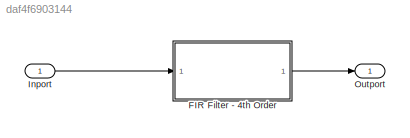
MODEL slx_daf4f6903144
KIND model
CONFIG AbsTol = auto
CONFIG EnableMultiTasking = off
CONFIG FixedStep = auto
CONFIG MaxStep = auto
CONFIG MinStep = auto
CONFIG RelTol = 1e-3
CONFIG SampleTimeConstraint = Unconstrained
CONFIG Solver = VariableStepAuto
CONFIG SolverName = VariableStepAuto
CONFIG StartTime = 0.0
CONFIG StopTime = 10.0
BLOCK [ModelReference] FIR Filter - 4th Order
  ModelNameDialog = FIR_Filter_4th_Order
  ModelReferenceVersion = 1.2
  Ports = [1, 1]
BLOCK [Inport] Inport
BLOCK [Outport] Outport
LINE FIR Filter - 4th Order:1 -> Outport:1
LINE Inport:1 -> FIR Filter - 4th Order:1
